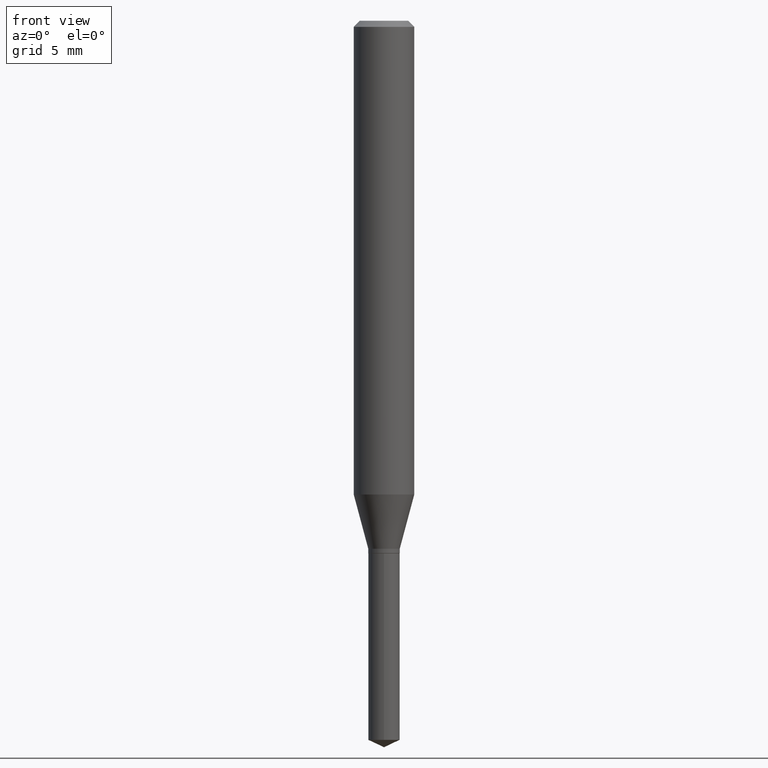
[diagram: clean part render]
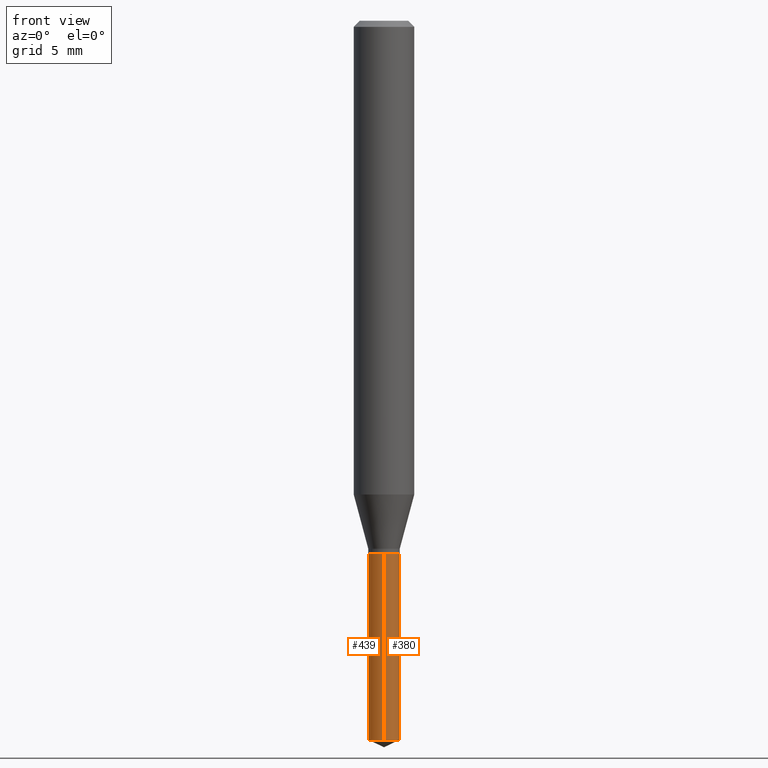
[diagram: same view with one multi-face feature highlighted, each face labeled with its STEP entity id]
A machine part, front view. The highlighted faces form ONE feature: a constant-radius fillet chain: 2 tangent blend faces with common blend radius 0.8255 mm. The faces share edges in the B-rep.
Their STEP definitions:
[1] entity #380 (Cylinder):
#1 = DIRECTION ( 'NONE',  ( -2.445399690415121530E-29, 3.491580316559632610E-15, 1.000000000000000000 ) ) ;
#24 = VECTOR ( 'NONE', #473, 39.37007874015748143 ) ;
#33 = DIRECTION ( 'NONE',  ( -2.445399690415121810E-29, 3.491580316559632610E-15, 1.000000000000000000 ) ) ;
#36 = EDGE_CURVE ( 'NONE', #148, #275, #131, .T. ) ;
#68 = AXIS2_PLACEMENT_3D ( 'NONE', #383, #1, #123 ) ;
#92 = CARTESIAN_POINT ( 'NONE',  ( 2.309263891220688559E-16, 0.03249999999999481776, -1.484845001109962981 ) ) ;
#102 = ORIENTED_EDGE ( 'NONE', *, *, #36, .F. ) ;
#103 = VERTEX_POINT ( 'NONE', #92 ) ;
#123 = DIRECTION ( 'NONE',  ( -6.982962677686265922E-15, -1.000000000000000000, 0.000000000000000000 ) ) ;
#131 = LINE ( 'NONE', #431, #24 ) ;
#148 = VERTEX_POINT ( 'NONE', #233 ) ;
#152 = CARTESIAN_POINT ( 'NONE',  ( -2.269462870247767285E-16, -0.03250000000000383832, -1.099999999999999867 ) ) ;
#157 = CIRCLE ( 'NONE', #287, 0.03250000000000000111 ) ;
#162 = EDGE_LOOP ( 'NONE', ( #480, #212, #201, #102 ) ) ;
#173 = EDGE_CURVE ( 'NONE', #275, #416, #157, .T. ) ;
#197 = FACE_OUTER_BOUND ( 'NONE', #162, .T. ) ;
#200 = CARTESIAN_POINT ( 'NONE',  ( 2.309263891220689052E-16, 0.03249999999999615696, -1.100000000000000089 ) ) ;
#201 = ORIENTED_EDGE ( 'NONE', *, *, #173, .F. ) ;
#206 = CARTESIAN_POINT ( 'NONE',  ( 2.690015686803650369E-29, -3.840629472727460101E-15, -1.100000000000000089 ) ) ;
#212 = ORIENTED_EDGE ( 'NONE', *, *, #253, .T. ) ;
#233 = CARTESIAN_POINT ( 'NONE',  ( -2.269462870247673115E-16, -0.03250000000000519140, -1.484845001109962981 ) ) ;
#253 = EDGE_CURVE ( 'NONE', #103, #416, #260, .T. ) ;
#260 = LINE ( 'NONE', #467, #331 ) ;
#262 = EDGE_CURVE ( 'NONE', #148, #103, #388, .T. ) ;
#274 = DIRECTION ( 'NONE',  ( -2.445399690415121530E-29, 3.491580316559632610E-15, 1.000000000000000000 ) ) ;
#275 = VERTEX_POINT ( 'NONE', #152 ) ;
#287 = AXIS2_PLACEMENT_3D ( 'NONE', #206, #274, #375 ) ;
#331 = VECTOR ( 'NONE', #33, 39.37007874015748143 ) ;
#352 = CYLINDRICAL_SURFACE ( 'NONE', #386, 0.03250000000000000111 ) ;
#375 = DIRECTION ( 'NONE',  ( -6.982962677686265922E-15, -1.000000000000000000, 4.202843067175789324E-15 ) ) ;
#380 = ADVANCED_FACE ( 'NONE', ( #197 ), #352, .T. ) ;
#383 = CARTESIAN_POINT ( 'NONE',  ( 3.631115533375760898E-29, -5.184346703529376829E-15, -1.484845001109962981 ) ) ;
#386 = AXIS2_PLACEMENT_3D ( 'NONE', #432, #429, #394 ) ;
#388 = CIRCLE ( 'NONE', #68, 0.03250000000000000111 ) ;
#394 = DIRECTION ( 'NONE',  ( -6.982962677686265922E-15, -1.000000000000000000, 4.202843067175789324E-15 ) ) ;
#416 = VERTEX_POINT ( 'NONE', #200 ) ;
#429 = DIRECTION ( 'NONE',  ( -2.445399690415121530E-29, 3.491580316559632610E-15, 1.000000000000000000 ) ) ;
#431 = CARTESIAN_POINT ( 'NONE',  ( -2.269462870247767285E-16, -0.03250000000000383832, -1.099999999999999867 ) ) ;
#432 = CARTESIAN_POINT ( 'NONE',  ( 2.690015686803650369E-29, -3.840629472727460101E-15, -1.100000000000000089 ) ) ;
#467 = CARTESIAN_POINT ( 'NONE',  ( 2.309263891220594389E-16, 0.03249999999999615696, -1.100000000000000089 ) ) ;
#473 = DIRECTION ( 'NONE',  ( -2.445399690415121810E-29, 3.491580316559632610E-15, 1.000000000000000000 ) ) ;
#480 = ORIENTED_EDGE ( 'NONE', *, *, #262, .T. ) ;
[2] entity #439 (Cylinder):
#9 = CIRCLE ( 'NONE', #29, 0.03250000000000000111 ) ;
#21 = CYLINDRICAL_SURFACE ( 'NONE', #172, 0.03250000000000000111 ) ;
#24 = VECTOR ( 'NONE', #473, 39.37007874015748143 ) ;
#29 = AXIS2_PLACEMENT_3D ( 'NONE', #334, #486, #339 ) ;
#33 = DIRECTION ( 'NONE',  ( -2.445399690415121810E-29, 3.491580316559632610E-15, 1.000000000000000000 ) ) ;
#34 = EDGE_LOOP ( 'NONE', ( #444, #174, #193, #485 ) ) ;
#36 = EDGE_CURVE ( 'NONE', #148, #275, #131, .T. ) ;
#50 = DIRECTION ( 'NONE',  ( -2.445399690415121530E-29, 3.491580316559632610E-15, 1.000000000000000000 ) ) ;
#92 = CARTESIAN_POINT ( 'NONE',  ( 2.309263891220688559E-16, 0.03249999999999481776, -1.484845001109962981 ) ) ;
#96 = DIRECTION ( 'NONE',  ( -6.982962677686265922E-15, -1.000000000000000000, 4.202843067175789324E-15 ) ) ;
#103 = VERTEX_POINT ( 'NONE', #92 ) ;
#117 = CARTESIAN_POINT ( 'NONE',  ( 2.690015686803650369E-29, -3.840629472727460101E-15, -1.100000000000000089 ) ) ;
#120 = EDGE_CURVE ( 'NONE', #416, #275, #405, .T. ) ;
#129 = DIRECTION ( 'NONE',  ( -2.445399690415121530E-29, 3.491580316559632610E-15, 1.000000000000000000 ) ) ;
#131 = LINE ( 'NONE', #431, #24 ) ;
#148 = VERTEX_POINT ( 'NONE', #233 ) ;
#152 = CARTESIAN_POINT ( 'NONE',  ( -2.269462870247767285E-16, -0.03250000000000383832, -1.099999999999999867 ) ) ;
#156 = DIRECTION ( 'NONE',  ( -6.982962677686265922E-15, -1.000000000000000000, 4.202843067175789324E-15 ) ) ;
#172 = AXIS2_PLACEMENT_3D ( 'NONE', #471, #129, #96 ) ;
#174 = ORIENTED_EDGE ( 'NONE', *, *, #299, .T. ) ;
#193 = ORIENTED_EDGE ( 'NONE', *, *, #36, .T. ) ;
#200 = CARTESIAN_POINT ( 'NONE',  ( 2.309263891220689052E-16, 0.03249999999999615696, -1.100000000000000089 ) ) ;
#233 = CARTESIAN_POINT ( 'NONE',  ( -2.269462870247673115E-16, -0.03250000000000519140, -1.484845001109962981 ) ) ;
#253 = EDGE_CURVE ( 'NONE', #103, #416, #260, .T. ) ;
#260 = LINE ( 'NONE', #467, #331 ) ;
#275 = VERTEX_POINT ( 'NONE', #152 ) ;
#299 = EDGE_CURVE ( 'NONE', #103, #148, #9, .T. ) ;
#331 = VECTOR ( 'NONE', #33, 39.37007874015748143 ) ;
#334 = CARTESIAN_POINT ( 'NONE',  ( 3.631115533375760898E-29, -5.184346703529376829E-15, -1.484845001109962981 ) ) ;
#339 = DIRECTION ( 'NONE',  ( -6.982962677686265922E-15, -1.000000000000000000, 0.000000000000000000 ) ) ;
#359 = FACE_OUTER_BOUND ( 'NONE', #34, .T. ) ;
#376 = AXIS2_PLACEMENT_3D ( 'NONE', #117, #50, #156 ) ;
#405 = CIRCLE ( 'NONE', #376, 0.03250000000000000111 ) ;
#416 = VERTEX_POINT ( 'NONE', #200 ) ;
#431 = CARTESIAN_POINT ( 'NONE',  ( -2.269462870247767285E-16, -0.03250000000000383832, -1.099999999999999867 ) ) ;
#439 = ADVANCED_FACE ( 'NONE', ( #359 ), #21, .T. ) ;
#444 = ORIENTED_EDGE ( 'NONE', *, *, #253, .F. ) ;
#467 = CARTESIAN_POINT ( 'NONE',  ( 2.309263891220594389E-16, 0.03249999999999615696, -1.100000000000000089 ) ) ;
#471 = CARTESIAN_POINT ( 'NONE',  ( 2.690015686803650369E-29, -3.840629472727460101E-15, -1.100000000000000089 ) ) ;
#473 = DIRECTION ( 'NONE',  ( -2.445399690415121810E-29, 3.491580316559632610E-15, 1.000000000000000000 ) ) ;
#485 = ORIENTED_EDGE ( 'NONE', *, *, #120, .F. ) ;
#486 = DIRECTION ( 'NONE',  ( -2.445399690415121530E-29, 3.491580316559632610E-15, 1.000000000000000000 ) ) ;